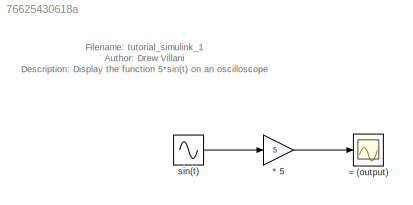
MODEL slx_76625430618a
KIND model
CONFIG AbsTol = auto
CONFIG EnableMultiTasking = off
CONFIG FixedStep = auto
CONFIG MaxStep = auto
CONFIG MinStep = auto
CONFIG RelTol = 1e-3
CONFIG SampleTimeConstraint = Unconstrained
CONFIG SolverName = VariableStepAuto
CONFIG StartTime = 0.0
CONFIG StopTime = 10.0
BLOCK [Gain] * 5
  Gain = 5
BLOCK [Scope] = (output)
  Floating = off
  NumInputPorts = 1
  ScopeSpecificationString = Simulink.scopes.TimeScopeBlockCfg('CurrentConfiguration', extmgr.ConfigurationSet(extmgr.Configuration('Core','General UI',true),extmgr.Configuration('Core','Source UI',true),extmgr.Configuration('Sources','WiredSimulink',true),extmgr.Configuration('Visuals','Time Domain',true,'SerializedDisplays',{struct('MinYLimReal','-6.22816','MaxYLimReal','6.2452','YLabelReal','','MinYLimMag','0.00000','MaxYL...<+1409ch>
BLOCK [Sin] sin(t)
  SampleTime = 0
ANNOTATION (root): Filename: tutorial_simulink_1 Author: Drew Villani Description: Display the function 5*sin(t) on an oscilloscope
LINE * 5:1 -> = (output):1
LINE sin(t):1 -> * 5:1
